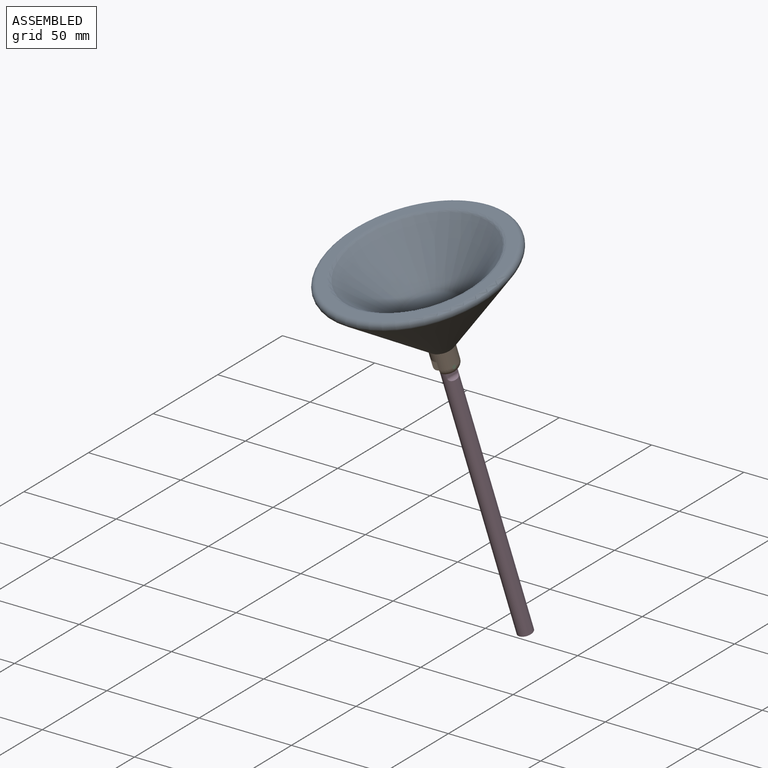
[diagram: assembled view]
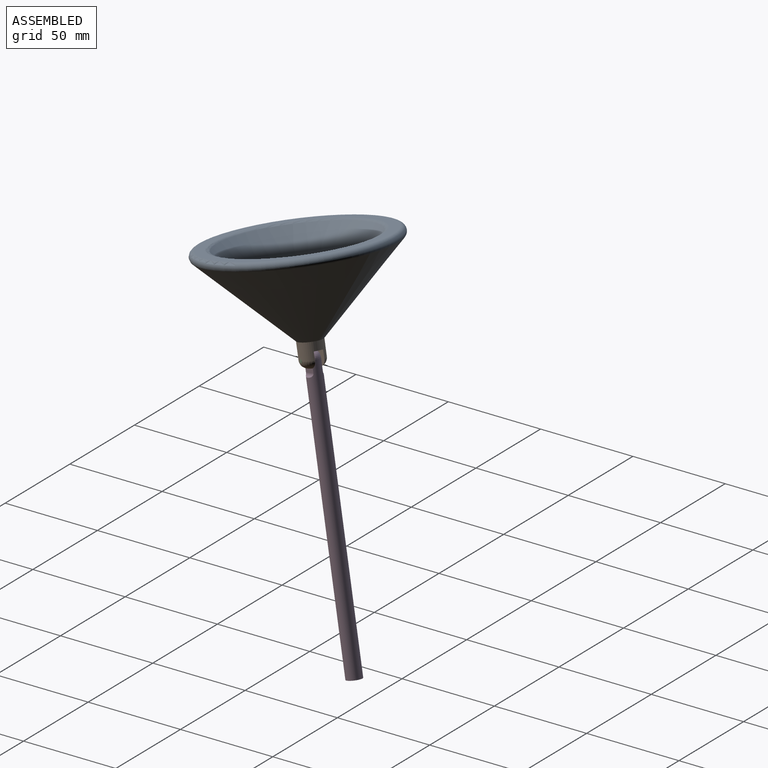
[diagram: assembled view, second angle]
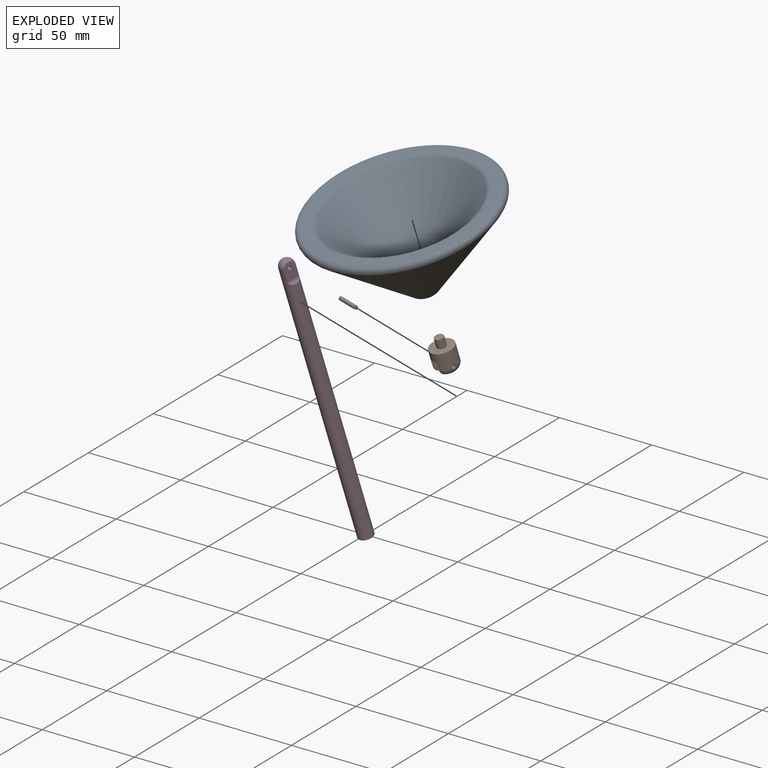
[diagram: exploded view]
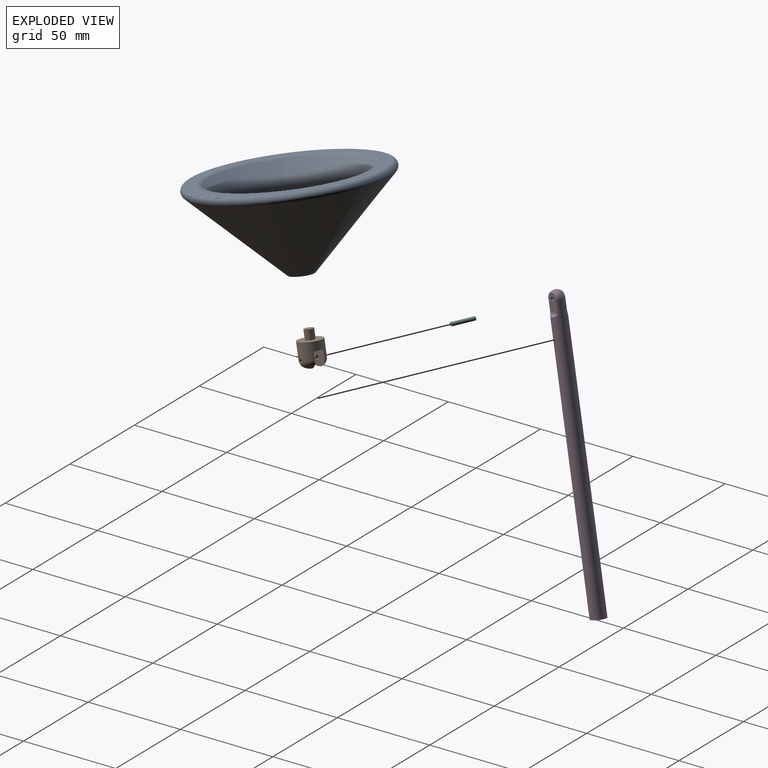
[diagram: exploded view, second angle]
ASSEMBLY  parts=4 mates=6
PART A: 10 faces, bbox 105.7x105.7x46 mm
  f0: plane 92.53x92.53mm, normal (0,0,-1), area 1443mm2, adj f1,f7
  f1: torus R=46.27mm, axis (0,0,-1), area 1809mm2, adj f0,f2
  f2: cone r=6.35mm half-angle=45deg, axis (0,0,-1), area 10084.1mm2, adj f1,f3
  f3: plane 12.7x12.7mm, normal (0,0,1), area 102.9mm2, adj f2,f8
  f4: plane 25.4x25.4mm, normal (0,0,-1), area 506.7mm2, adj f5
  f5: torus R=12.7mm, axis (0,0,-1), area 171.1mm2, adj f4,f6
  f6: cone r=14.5mm half-angle=45deg, axis (0,0,-1), area 5896.2mm2, adj f5,f7
  f7: torus R=41mm, axis (0,0,-1), area 502.1mm2, adj f0,f6
  f8: cylinder r=2.75mm len=12.7mm, axis (0,0,1), area 219.4mm2, adj f3,f9
  f9: cone r=0mm half-angle=59deg, axis (0,0,1), area 27.7mm2, adj f8
PART B: 13 faces, bbox 12.7x12.7x17.7 mm
  f0: cylinder r=6.35mm len=12.7mm, axis (0,0,-1), area 300.4mm2, adj f1,f2,f3,f4,f5,f6,f7,f8
  f1: torus R=2.35mm, axis (0,0,1), area 61mm2, adj f0,f4,f10
  f2: torus R=2.35mm, axis (0,0,1), area 61mm2, adj f0,f5,f9
  f3: plane 12.7x12.7mm, normal (0,0,-1), area 108.2mm2, adj f0,f11
  f4: plane 11.67x7.99mm, normal (0,-1,0), area 82.3mm2, adj f0,f1,f8,f10
  f5: plane 11.67x7.99mm, normal (0,1,0), area 82.3mm2, adj f0,f2,f7,f9
  f6: plane 12.7x4.49mm, normal (0,0,1), area 55.8mm2, adj f0,f7,f8
  f7: cylinder r=0.25mm len=11.88mm, axis (1,0,0), area 4.7mm2, adj f0,f5,f6
  f8: cylinder r=0.25mm len=11.88mm, axis (-1,0,0), area 4.7mm2, adj f0,f4,f6
  f9: cylinder r=1mm len=3.77mm, axis (0,1,0), area 23.6mm2, adj f0,f2,f5
  f10: cylinder r=1mm len=3.85mm, axis (0,-1,0), area 23.8mm2, adj f0,f1,f4
  f11: cylinder r=2.42mm len=5mm, axis (0,0,1), area 76.1mm2, adj f3,f12
  f12: plane 4.85x4.85mm, normal (0,0,-1), area 18.5mm2, adj f11
PART C: 3 faces, bbox 12.7x2x2 mm
  f0: cylinder r=1mm len=12.7mm, axis (-1,0,0), area 79.8mm2, adj f1,f2
  f1: plane 2x2mm, normal (1,0,0), area 3.1mm2, adj f0
  f2: plane 2x2mm, normal (-1,0,0), area 3.1mm2, adj f0
PART D: 8 faces, bbox 150x8x8 mm
  f0: cylinder r=4mm len=146mm, axis (-1,0,0), area 3560.2mm2, adj f1,f2,f3,f4,f5,f6
  f1: plane 8x8mm, normal (1,0,0), area 50.3mm2, adj f0
  f2: plane 9.12x6.25mm, normal (0,-1,0), area 49.6mm2, adj f0,f4,f6,f7
  f3: plane 9.12x6.25mm, normal (0,1,0), area 49.6mm2, adj f0,f4,f5,f7
  f4: sphere r=4mm, area 62.8mm2, adj f0,f2,f3
  f5: cylinder r=2mm len=6.25mm, axis (0,0,1), area 13.1mm2, adj f0,f3
  f6: cylinder r=2mm len=6.25mm, axis (0,0,-1), area 13.1mm2, adj f0,f2
  f7: cylinder r=1mm len=5mm, axis (0,-1,0), area 31.4mm2, adj f2,f3
PLACE A rot(axis=(-0.71,-0.69,-0.13),175.1deg) t=(1.77,-105.59,237.63)mm
PLACE B rot(axis=(-0.56,0.83,0.07),166.2deg) t=(7.49,-94.48,193.31)mm
PLACE C rot(axis=(-0.04,-0.13,0.99),158.5deg) t=(14.46,-94.74,185.1)mm
PLACE D rot(axis=(-0.46,0.66,0.59),96.7deg) t=(8.07,-93.34,188.79)mm
MATE planar D.f2 <-> C.f0  axis (0.93,-0.37,0.03) through (11.63,-91.86,179.23)mm
MATE slider C.f0 <-> D.f7  axis (0.93,-0.37,0.03) through (8.57,-92.38,184.94)mm
MATE planar A.f1 <-> B.f0  axis (0.12,0.24,-0.96) through (7.49,-94.48,193.31)mm
MATE planar B.f4 <-> D.f3  axis (0.93,-0.37,0.03) through (6.21,-91.52,185.16)mm
MATE slider B.f9 <-> C.f0  axis (-0.93,0.37,-0.03) through (10.89,-93.31,185)mm
MATE cylindrical A.f1 <-> B.f0  axis (0.12,0.24,-0.96) through (7.49,-94.48,193.31)mm
